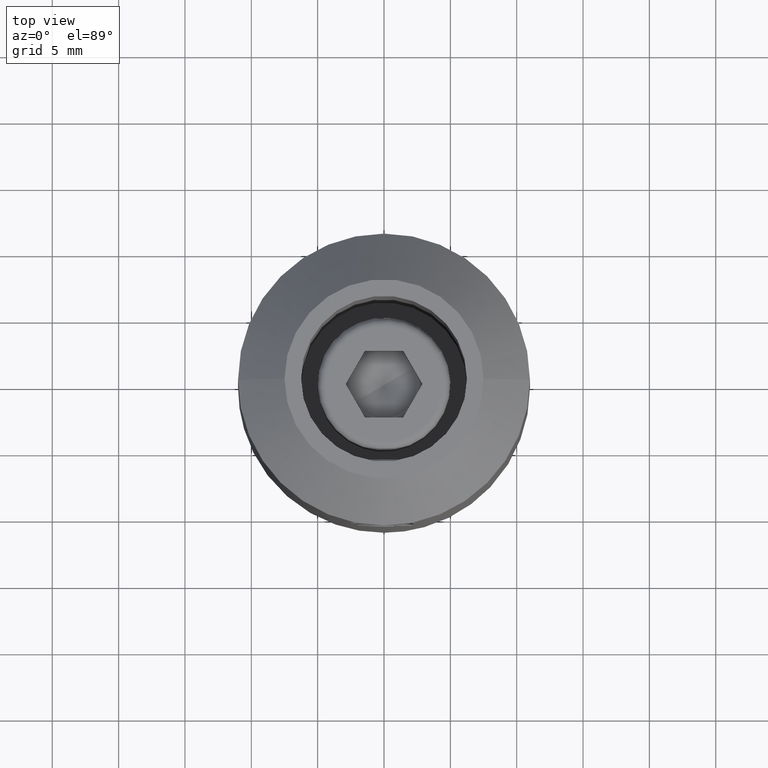
[diagram: clean part render]
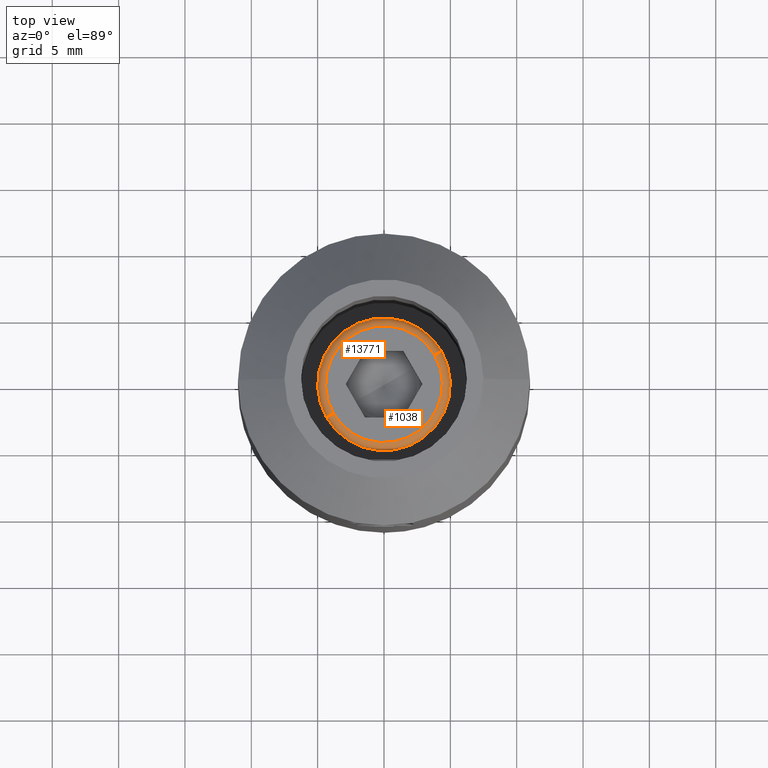
[diagram: same view with one multi-face feature highlighted, each face labeled with its STEP entity id]
A machine part, top view. The highlighted faces form ONE feature: a constant-radius fillet chain: 2 tangent blend faces with common blend radius 0.6 mm. The faces share edges in the B-rep.
Their STEP definitions:
[1] entity #13771 (Torus):
#609 = ORIENTED_EDGE ( 'NONE', *, *, #7074, .F. ) ;
#744 = EDGE_CURVE ( 'NONE', #1398, #14731, #6428, .T. ) ;
#1398 = VERTEX_POINT ( 'NONE', #15820 ) ;
#1723 = ORIENTED_EDGE ( 'NONE', *, *, #744, .T. ) ;
#1988 = FACE_OUTER_BOUND ( 'NONE', #7537, .T. ) ;
#2042 = VERTEX_POINT ( 'NONE', #15567 ) ;
#2850 = DIRECTION ( 'NONE',  ( 0.000000000000000000, -2.109423746787771000E-15, 1.000000000000000000 ) ) ;
#2888 = DIRECTION ( 'NONE',  ( -0.000000000000000000, -1.000000000000000000, -2.109423746787771394E-15 ) ) ;
#3381 = AXIS2_PLACEMENT_3D ( 'NONE', #19642, #10167, #7047 ) ;
#4031 = CARTESIAN_POINT ( 'NONE',  ( 0.6000000000000033085, 9.820309077491149956E-15, -4.400000000000054534 ) ) ;
#5064 = ORIENTED_EDGE ( 'NONE', *, *, #8626, .F. ) ;
#5570 = VERTEX_POINT ( 'NONE', #7827 ) ;
#5943 = AXIS2_PLACEMENT_3D ( 'NONE', #13764, #20173, #2850 ) ;
#6022 = DIRECTION ( 'NONE',  ( 0.000000000000000000, -2.109423746787771394E-15, 1.000000000000000000 ) ) ;
#6167 = AXIS2_PLACEMENT_3D ( 'NONE', #15255, #2888, #13928 ) ;
#6428 = CIRCLE ( 'NONE', #7486, 0.5999999999999998668 ) ;
#7047 = DIRECTION ( 'NONE',  ( 0.000000000000000000, -2.109423746787771394E-15, 1.000000000000000000 ) ) ;
#7074 = EDGE_CURVE ( 'NONE', #2042, #5570, #9293, .T. ) ;
#7486 = AXIS2_PLACEMENT_3D ( 'NONE', #4031, #18478, #15354 ) ;
#7537 = EDGE_LOOP ( 'NONE', ( #5064, #1723, #9439, #609 ) ) ;
#7827 = CARTESIAN_POINT ( 'NONE',  ( 0.000000000000000000, -9.281464485866309625E-15, 4.400000000000054534 ) ) ;
#8626 = EDGE_CURVE ( 'NONE', #1398, #2042, #12942, .T. ) ;
#9151 = DIRECTION ( 'NONE',  ( -1.000000000000000000, 0.000000000000000000, 0.000000000000000000 ) ) ;
#9290 = AXIS2_PLACEMENT_3D ( 'NONE', #10802, #9151, #6022 ) ;
#9293 = CIRCLE ( 'NONE', #6167, 0.5999999999999998668 ) ;
#9439 = ORIENTED_EDGE ( 'NONE', *, *, #17002, .F. ) ;
#10167 = DIRECTION ( 'NONE',  ( 1.000000000000000000, -0.000000000000000000, -0.000000000000000000 ) ) ;
#10802 = CARTESIAN_POINT ( 'NONE',  ( 0.000000000000000000, 0.000000000000000000, 0.000000000000000000 ) ) ;
#11114 = TOROIDAL_SURFACE ( 'NONE', #5943, 4.400000000000000355, 0.5999999999999999778 ) ;
#11997 = CIRCLE ( 'NONE', #9290, 4.400000000000054534 ) ;
#12942 = CIRCLE ( 'NONE', #3381, 5.000000000000062172 ) ;
#13764 = CARTESIAN_POINT ( 'NONE',  ( 0.6000000000000033085, 0.000000000000000000, 0.000000000000000000 ) ) ;
#13771 = ADVANCED_FACE ( 'NONE', ( #1988 ), #11114, .T. ) ;
#13928 = DIRECTION ( 'NONE',  ( 0.000000000000000000, 2.109423746787771000E-15, -1.000000000000000000 ) ) ;
#14731 = VERTEX_POINT ( 'NONE', #17560 ) ;
#15255 = CARTESIAN_POINT ( 'NONE',  ( 0.6000000000000033085, -9.281464485866309625E-15, 4.400000000000054534 ) ) ;
#15354 = DIRECTION ( 'NONE',  ( 0.000000000000000000, -2.231888426702507726E-15, 1.000000000000000000 ) ) ;
#15567 = CARTESIAN_POINT ( 'NONE',  ( 0.6000000000000033085, -1.054711873393898713E-14, 5.000000000000062172 ) ) ;
#15820 = CARTESIAN_POINT ( 'NONE',  ( 0.6000000000000033085, 1.115944213351253350E-14, -5.000000000000000000 ) ) ;
#17002 = EDGE_CURVE ( 'NONE', #5570, #14731, #11997, .T. ) ;
#17560 = CARTESIAN_POINT ( 'NONE',  ( 0.000000000000000000, 1.048987560550177941E-14, -4.400000000000000355 ) ) ;
#18478 = DIRECTION ( 'NONE',  ( 0.000000000000000000, 1.000000000000000000, 2.231888426702506543E-15 ) ) ;
#19642 = CARTESIAN_POINT ( 'NONE',  ( 0.6000000000000033085, 0.000000000000000000, 0.000000000000000000 ) ) ;
#20173 = DIRECTION ( 'NONE',  ( -1.000000000000000000, 0.000000000000000000, 0.000000000000000000 ) ) ;
[2] entity #1038 (Torus):
#744 = EDGE_CURVE ( 'NONE', #1398, #14731, #6428, .T. ) ;
#1038 = ADVANCED_FACE ( 'NONE', ( #18809 ), #5198, .T. ) ;
#1398 = VERTEX_POINT ( 'NONE', #15820 ) ;
#1600 = DIRECTION ( 'NONE',  ( 1.000000000000000000, -0.000000000000000000, -0.000000000000000000 ) ) ;
#1775 = EDGE_CURVE ( 'NONE', #2042, #1398, #9652, .T. ) ;
#2042 = VERTEX_POINT ( 'NONE', #15567 ) ;
#2096 = AXIS2_PLACEMENT_3D ( 'NONE', #17329, #1600, #3981 ) ;
#2888 = DIRECTION ( 'NONE',  ( -0.000000000000000000, -1.000000000000000000, -2.109423746787771394E-15 ) ) ;
#3902 = EDGE_LOOP ( 'NONE', ( #19207, #5115, #13500, #15456 ) ) ;
#3981 = DIRECTION ( 'NONE',  ( 0.000000000000000000, -2.109423746787771394E-15, 1.000000000000000000 ) ) ;
#4031 = CARTESIAN_POINT ( 'NONE',  ( 0.6000000000000033085, 9.820309077491149956E-15, -4.400000000000054534 ) ) ;
#5115 = ORIENTED_EDGE ( 'NONE', *, *, #1775, .F. ) ;
#5198 = TOROIDAL_SURFACE ( 'NONE', #7079, 4.400000000000000355, 0.5999999999999999778 ) ;
#5570 = VERTEX_POINT ( 'NONE', #7827 ) ;
#5697 = CIRCLE ( 'NONE', #15213, 4.400000000000054534 ) ;
#5793 = CARTESIAN_POINT ( 'NONE',  ( 0.000000000000000000, 0.000000000000000000, 0.000000000000000000 ) ) ;
#6167 = AXIS2_PLACEMENT_3D ( 'NONE', #15255, #2888, #13928 ) ;
#6428 = CIRCLE ( 'NONE', #7486, 0.5999999999999998668 ) ;
#7074 = EDGE_CURVE ( 'NONE', #2042, #5570, #9293, .T. ) ;
#7079 = AXIS2_PLACEMENT_3D ( 'NONE', #13450, #18304, #8837 ) ;
#7361 = DIRECTION ( 'NONE',  ( -1.000000000000000000, 0.000000000000000000, 0.000000000000000000 ) ) ;
#7486 = AXIS2_PLACEMENT_3D ( 'NONE', #4031, #18478, #15354 ) ;
#7827 = CARTESIAN_POINT ( 'NONE',  ( 0.000000000000000000, -9.281464485866309625E-15, 4.400000000000054534 ) ) ;
#8837 = DIRECTION ( 'NONE',  ( 0.000000000000000000, -2.109423746787771000E-15, 1.000000000000000000 ) ) ;
#9293 = CIRCLE ( 'NONE', #6167, 0.5999999999999998668 ) ;
#9652 = CIRCLE ( 'NONE', #2096, 5.000000000000062172 ) ;
#12644 = EDGE_CURVE ( 'NONE', #14731, #5570, #5697, .T. ) ;
#13450 = CARTESIAN_POINT ( 'NONE',  ( 0.6000000000000033085, 0.000000000000000000, 0.000000000000000000 ) ) ;
#13500 = ORIENTED_EDGE ( 'NONE', *, *, #7074, .T. ) ;
#13928 = DIRECTION ( 'NONE',  ( 0.000000000000000000, 2.109423746787771000E-15, -1.000000000000000000 ) ) ;
#14731 = VERTEX_POINT ( 'NONE', #17560 ) ;
#15213 = AXIS2_PLACEMENT_3D ( 'NONE', #5793, #7361, #16904 ) ;
#15255 = CARTESIAN_POINT ( 'NONE',  ( 0.6000000000000033085, -9.281464485866309625E-15, 4.400000000000054534 ) ) ;
#15354 = DIRECTION ( 'NONE',  ( 0.000000000000000000, -2.231888426702507726E-15, 1.000000000000000000 ) ) ;
#15456 = ORIENTED_EDGE ( 'NONE', *, *, #12644, .F. ) ;
#15567 = CARTESIAN_POINT ( 'NONE',  ( 0.6000000000000033085, -1.054711873393898713E-14, 5.000000000000062172 ) ) ;
#15820 = CARTESIAN_POINT ( 'NONE',  ( 0.6000000000000033085, 1.115944213351253350E-14, -5.000000000000000000 ) ) ;
#16904 = DIRECTION ( 'NONE',  ( 0.000000000000000000, -2.109423746787771394E-15, 1.000000000000000000 ) ) ;
#17329 = CARTESIAN_POINT ( 'NONE',  ( 0.6000000000000033085, 0.000000000000000000, 0.000000000000000000 ) ) ;
#17560 = CARTESIAN_POINT ( 'NONE',  ( 0.000000000000000000, 1.048987560550177941E-14, -4.400000000000000355 ) ) ;
#18304 = DIRECTION ( 'NONE',  ( -1.000000000000000000, 0.000000000000000000, 0.000000000000000000 ) ) ;
#18478 = DIRECTION ( 'NONE',  ( 0.000000000000000000, 1.000000000000000000, 2.231888426702506543E-15 ) ) ;
#18809 = FACE_OUTER_BOUND ( 'NONE', #3902, .T. ) ;
#19207 = ORIENTED_EDGE ( 'NONE', *, *, #744, .F. ) ;